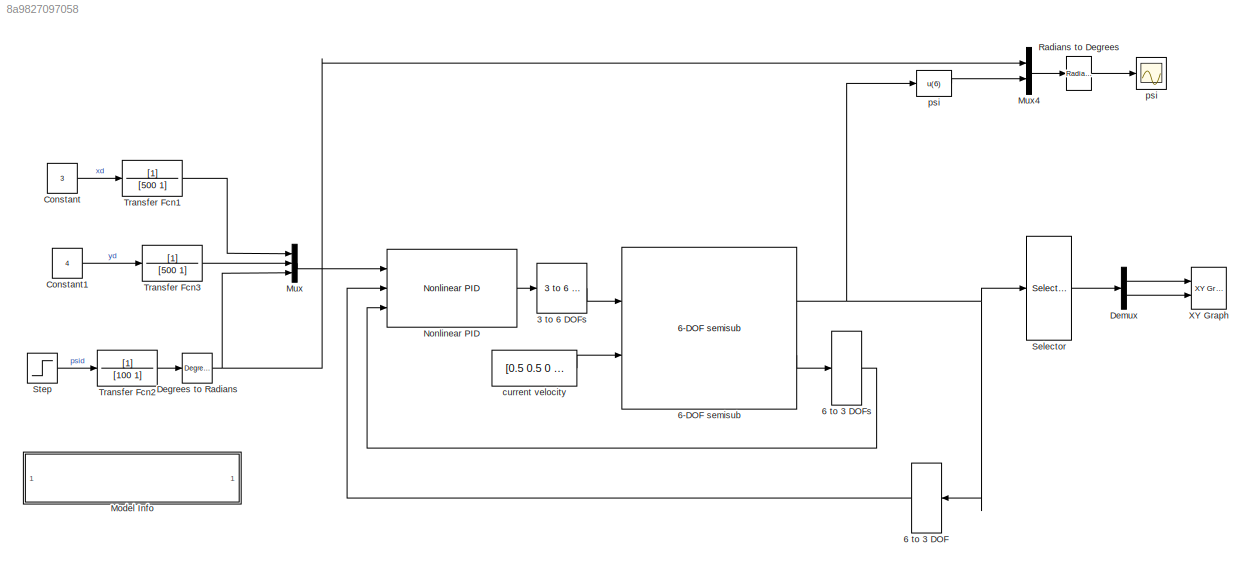
MODEL slx_8a9827097058
KIND model
CONFIG AbsTol = auto
CONFIG EnableMultiTasking = on
CONFIG FixedStep = auto
CONFIG MaxStep = auto
CONFIG MinStep = auto
CONFIG RelTol = 1e-3
CONFIG SampleTimeConstraint = Unconstrained
CONFIG SolverName = ode45
CONFIG StartTime = 0.0
CONFIG StopTime = 1000
BLOCK [Reference] 3 to 6 DOFs  REF=mssSimulink/Modelling/Kinetics /Support/3 to 6 DOF
  Ports = [1, 1]
  SourceBlock = mssSimulink/Modelling/Kinetics /Support/3 to 6 DOF
BLOCK [Selector] 6 to 3 DOF  
  IndexOptions = Index vector (dialog)
  Indices = [1 2 6]
  InputPortWidth = 6
  OutputSizes = 1
  Ports = [1, 1]
BLOCK [Selector] 6 to 3 DOFs
  IndexOptions = Index vector (dialog)
  Indices = [1 2 6]
  InputPortWidth = 6
  OutputSizes = 1
  Ports = [1, 1]
BLOCK [Reference] 6-DOF semisub   REF=mssSimulink/Marine craft models/6-DOF semisub
  Ports = [2, 2]
  SourceBlock = mssSimulink/Marine craft models/6-DOF semisub
  SourceType = 6-DOF semisub
BLOCK [Constant] Constant
  Value = 3
BLOCK [Constant] Constant1
  Value = 4
BLOCK [Reference] Degrees to Radians  REF=simulink_extras/Transformations/Degrees to
Radians
  Ports = [1, 1]
  SourceBlock = simulink_extras/Transformations/Degrees to\nRadians
  SourceProductBaseCode = SL
  SourceType = DegreesToRadians
BLOCK [Demux] Demux
  DisplayOption = none
  Outputs = 2
  Ports = [1, 2]
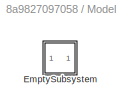
BLOCK [SubSystem] Model Info
  CopyFcn = slcm CopyBlock;
  DeleteFcn = slcm Cancel;
  InitFcn = slcm('UpdateAllCMBlocksInThisModelInit')
  LoadFcn = slcm LoadBlock;
  NameChangeFcn = slcm Rename;
  OpenFcn = slcm
  Ports = []
  PostSaveFcn = slcm('UpdateAllCMBlocksInThisModel')
  RequestExecContextInheritance = off
BLOCK [SubSystem] Model Info/EmptySubsystem
  Ports = []
  RequestExecContextInheritance = off
BLOCK [Mux] Mux
  DisplayOption = bar
  Inputs = 3
  Ports = [3, 1]
BLOCK [Mux] Mux4
  DisplayOption = bar
  Inputs = 2
  Ports = [2, 1]
BLOCK [Reference] Nonlinear PID   REF=mssSimulink/Control/DP/Nonlinear PID
  Ports = [3, 1]
  SourceBlock = mssSimulink/Control/DP/Nonlinear PID
  SourceType = Nonlinear DP Controller
BLOCK [Reference] Radians to Degrees  REF=simulink_extras/Transformations/Radians
to Degrees
  Ports = [1, 1]
  SourceBlock = simulink_extras/Transformations/Radians\nto Degrees
  SourceProductBaseCode = SL
  SourceType = RadiansToDegrees
BLOCK [Selector] Selector
  IndexOptions = Index vector (dialog)
  Indices = [1 2]
  InputPortWidth = 6
  OutputSizes = 1
  Ports = [1, 1]
BLOCK [Step] Step
  After = 10
  SampleTime = 0
  Time = 30
BLOCK [TransferFcn] Transfer Fcn1
  Denominator = [500 1]
BLOCK [TransferFcn] Transfer Fcn2
  Denominator = [100 1]
BLOCK [TransferFcn] Transfer Fcn3
  Denominator = [500 1]
BLOCK [Reference] XY Graph  REF=simulink/Sinks/XY Graph
  Ports = [2]
  SourceBlock = simulink/Sinks/XY Graph
  SourceProductBaseCode = SL
  SourceType = XY scope.
BLOCK [Constant] current velocity
  Value = [0.5 0.5 0 0 0 0]
BLOCK [Fcn] psi
  Expr = u(6)
BLOCK [Scope] psi  
  Floating = off
  NumInputPorts = 1
  Ports = [1]
  ScopeSpecificationString = Simulink.scopes.TimeScopeBlockCfg('CurrentConfiguration', extmgr.ConfigurationSet(extmgr.Configuration('Core','General UI',true),extmgr.Configuration('Core','Source UI',true),extmgr.Configuration('Sources','WiredSimulink',true,'DataLoggingSaveFormat','StructureWithTime','DataLoggingLimitDataPoints',true,'DataLoggingDecimation','1','DataLoggingDecimateData',true),extmgr.Configuration('Visuals','Tim...<+1730ch>
LINE 3 to 6 DOFs:1 -> 6-DOF semisub :1
LINE 6 to 3 DOF  :1 -> Nonlinear PID :2
LINE 6 to 3 DOFs:1 -> Nonlinear PID :3
NET 6-DOF semisub :1 -> 6 to 3 DOF  :1, Selector:1, psi:1
LINE 6-DOF semisub :2 -> 6 to 3 DOFs:1
LINE Constant1:1 -> Transfer Fcn3:1
LINE Constant:1 -> Transfer Fcn1:1
NET Degrees to Radians:1 -> Mux4:1, Mux:3
LINE Demux:1 -> XY Graph:1
LINE Demux:2 -> XY Graph:2
LINE Mux4:1 -> Radians to Degrees:1
LINE Mux:1 -> Nonlinear PID :1
LINE Nonlinear PID :1 -> 3 to 6 DOFs:1
LINE Radians to Degrees:1 -> psi  :1
LINE Selector:1 -> Demux:1
LINE Step:1 -> Transfer Fcn2:1
LINE Transfer Fcn1:1 -> Mux:1
LINE Transfer Fcn2:1 -> Degrees to Radians:1
LINE Transfer Fcn3:1 -> Mux:2
LINE current velocity:1 -> 6-DOF semisub :2
LINE psi:1 -> Mux4:2
note: NET lines group one-source signal fan-out (src -> all destinations, sorted); 1:1 wires keep LINE
